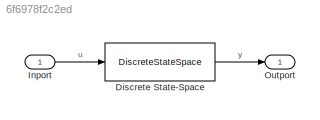
MODEL slx_6f6978f2c2ed
KIND model
CONFIG AbsTol = auto
CONFIG EnableMultiTasking = off
CONFIG FixedStep = auto
CONFIG MaxStep = auto
CONFIG MinStep = auto
CONFIG RelTol = 1e-3
CONFIG SampleTimeConstraint = Unconstrained
CONFIG SolverName = FixedStepAuto
CONFIG StartTime = 0.0
CONFIG StopTime = 10.0
BLOCK [DiscreteStateSpace] Discrete State-Space
  A = Ad
  B = Bd
  C = Cd
  D = Dd
  InitialCondition = x0
  SampleTime = dt
BLOCK [Inport] Inport
  IconDisplay = Signal name
  OutDataTypeStr = double
  SampleTime = dt
  SignalType = real
BLOCK [Outport] Outport
  IconDisplay = Signal name
  OutDataTypeStr = double
  SampleTime = dt
  SignalType = real
LINE Discrete State-Space:1 -> Outport:1
LINE Inport:1 -> Discrete State-Space:1
